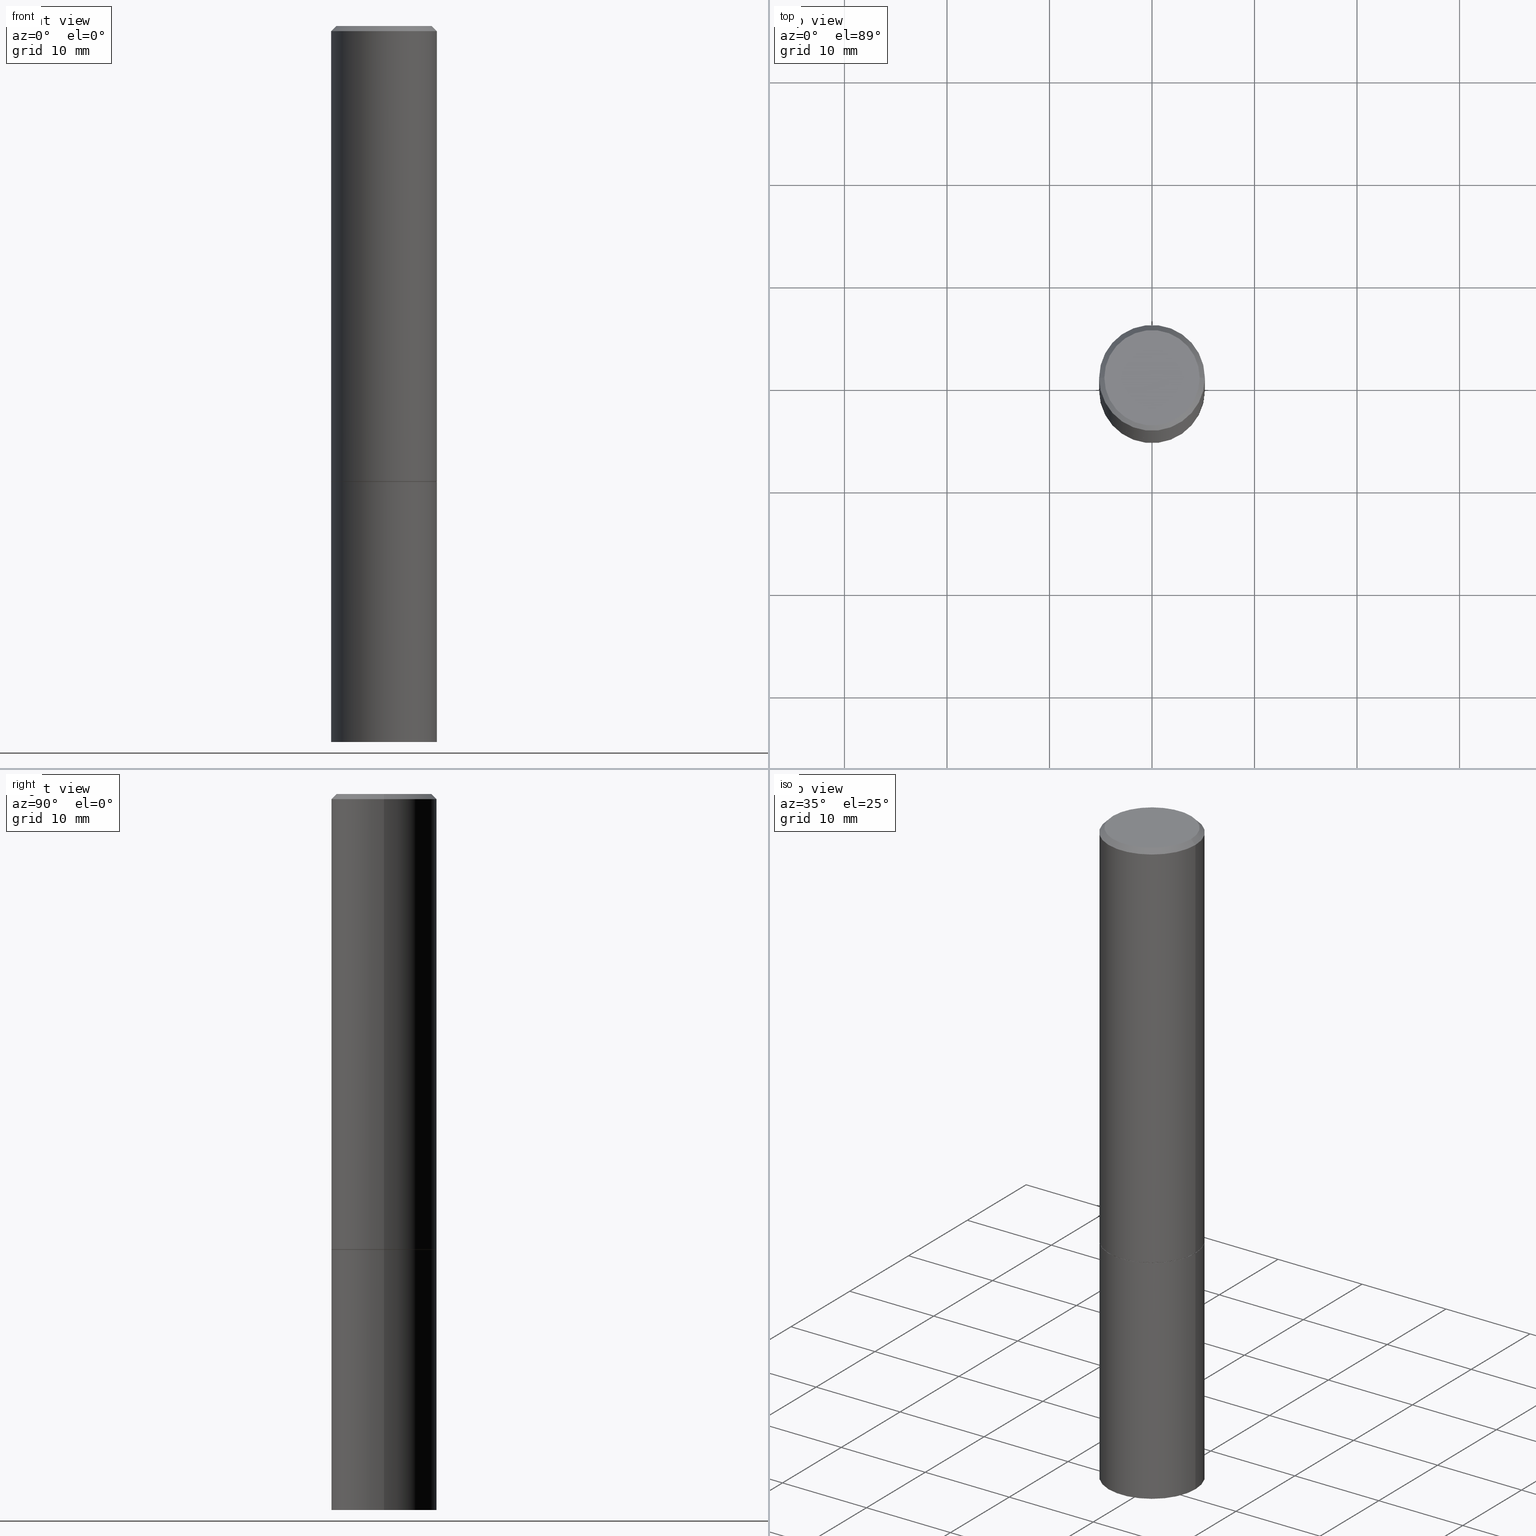
[diagram: canonical four-view strip — front | top / right | iso, engineering-drawing reading convention]
A machine part, canonical four-view strip (front | top / right | iso — engineering-drawing reading convention). The complete STEP part file that produces these views, byte-faithful:
ISO-10303-21;
HEADER;
FILE_DESCRIPTION (( 'STEP AP203' ),
    '1' );
FILE_NAME ('39051.STEP',
    '2023-03-21T20:47:35',
    ( '' ),
    ( '' ),
    'SwSTEP 2.0',
    'SolidWorks 2022',
    '' );
FILE_SCHEMA (( 'CONFIG_CONTROL_DESIGN' ));
ENDSEC;

DATA;
#1 = APPROVAL_DATE_TIME ( #211, #153 ) ;
#2 = CARTESIAN_POINT ( 'NONE',  ( 0.000000000000000000, 0.000000000000000000, 0.000000000000000000 ) ) ;
#3 = LINE ( 'NONE', #109, #341 ) ;
#4 = CONICAL_SURFACE ( 'NONE', #78, 0.2021000000000000019, 0.7853981633972775267 ) ;
#5 = EDGE_CURVE ( 'NONE', #62, #245, #182, .T. ) ;
#6 = PERSON_AND_ORGANIZATION_ROLE ( 'classification_officer' ) ;
#7 = CALENDAR_DATE ( 2023, 21, 3 ) ;
#8 = MANIFOLD_SOLID_BREP ( 'Body-Move/Copy2[1]', #48 ) ;
#9 = LOCAL_TIME ( 16, 47, 35.00000000000000000, #61 ) ;
#10 = CC_DESIGN_DATE_AND_TIME_ASSIGNMENT ( #330, #250, ( #258 ) ) ;
#11 = CLOSED_SHELL ( 'NONE', ( #117, #300, #194, #218, #127, #155, #228, #295 ) ) ;
#12 = DIRECTION ( 'NONE',  ( -2.445468806185136597E-29, 3.491481338843145583E-15, 1.000000000000000000 ) ) ;
#13 = CARTESIAN_POINT ( 'NONE',  ( 0.000000000000000000, 0.000000000000000000, 0.000000000000000000 ) ) ;
#14 = DIRECTION ( 'NONE',  ( -2.445468806185136597E-29, 3.491481338843145583E-15, 1.000000000000000000 ) ) ;
#15 = EDGE_CURVE ( 'NONE', #319, #146, #314, .T. ) ;
#16 = CARTESIAN_POINT ( 'NONE',  ( -0.2021000000000000019, -4.668787019656119386E-15, -1.750000000000000222 ) ) ;
#17 = ORIENTED_EDGE ( 'NONE', *, *, #5, .T. ) ;
#18 = ORIENTED_EDGE ( 'NONE', *, *, #138, .F. ) ;
#19 = CARTESIAN_POINT ( 'NONE',  ( 4.871854200182712814E-19, -9.564410284714797883E-15, -2.739355980027615711 ) ) ;
#20 = AXIS2_PLACEMENT_3D ( 'NONE', #68, #195, #173 ) ;
#21 = SECURITY_CLASSIFICATION ( '', '', #335 ) ;
#22 = CARTESIAN_POINT ( 'NONE',  ( 1.278580466284354179E-15, 0.1830999999999998462, -6.392902331421793574E-16 ) ) ;
#23 = VECTOR ( 'NONE', #175, 39.37007874015748143 ) ;
#24 = CARTESIAN_POINT ( 'NONE',  ( 0.2021000000000000019, -7.521349100135901010E-15, -1.750000000000000222 ) ) ;
#25 = EDGE_LOOP ( 'NONE', ( #73, #17 ) ) ;
#26 = CARTESIAN_POINT ( 'NONE',  ( 0.2031000000000000028, -1.418239719838080775E-15, 9.903515031641546145E-30 ) ) ;
#27 = LINE ( 'NONE', #24, #41 ) ;
#28 = APPROVAL_ROLE ( '' ) ;
#29 = AXIS2_PLACEMENT_3D ( 'NONE', #118, #190, #210 ) ;
#30 = FACE_OUTER_BOUND ( 'NONE', #336, .T. ) ;
#31 = EDGE_CURVE ( 'NONE', #266, #205, #92, .T. ) ;
#32 = COORDINATED_UNIVERSAL_TIME_OFFSET ( 5, 0, .BEHIND. ) ;
#33 = EDGE_LOOP ( 'NONE', ( #241, #384, #259 ) ) ;
#34 = PRODUCT_RELATED_PRODUCT_CATEGORY ( 'detail', '', ( #337 ) ) ;
#35 = PERSON_AND_ORGANIZATION ( #96, #253 ) ;
#36 = ADVANCED_FACE ( 'NONE', ( #356 ), #358, .F. ) ;
#37 = CARTESIAN_POINT ( 'NONE',  ( 4.279570410823989044E-29, -6.110092342975505460E-15, -1.750000000000000222 ) ) ;
#38 = AXIS2_PLACEMENT_3D ( 'NONE', #157, #124, #246 ) ;
#39 = APPROVAL_DATE_TIME ( #283, #244 ) ;
#40 = CARTESIAN_POINT ( 'NONE',  ( 4.890937612370284544E-31, -6.982962677686307633E-17, -0.02000000000000004552 ) ) ;
#41 = VECTOR ( 'NONE', #90, 39.37007874015748143 ) ;
#42 = DIRECTION ( 'NONE',  ( 1.000000000000000000, -6.982962677686264344E-15, 0.000000000000000000 ) ) ;
#43 = CC_DESIGN_PERSON_AND_ORGANIZATION_ASSIGNMENT ( #130, #6, ( #21 ) ) ;
#44 = DIRECTION ( 'NONE',  ( 2.445468806185136597E-29, -3.491481338843145583E-15, -1.000000000000000000 ) ) ;
#45 = EDGE_CURVE ( 'NONE', #319, #360, #185, .T. ) ;
#46 = DIRECTION ( 'NONE',  ( -2.438088387897960049E-29, 3.491481338843145188E-15, 1.000000000000000000 ) ) ;
#47 = APPROVAL_PERSON_ORGANIZATION ( #276, #153, #193 ) ;
#48 = CLOSED_SHELL ( 'NONE', ( #87, #85, #370, #95, #36 ) ) ;
#49 = EDGE_LOOP ( 'NONE', ( #386, #236, #243, #324 ) ) ;
#50 =( NAMED_UNIT ( * ) SI_UNIT ( $, .STERADIAN. ) SOLID_ANGLE_UNIT ( ) );
#51 = ORIENTED_EDGE ( 'NONE', *, *, #79, .T. ) ;
#52 = APPLICATION_CONTEXT ( 'configuration controlled 3d designs of mechanical parts and assemblies' ) ;
#53 = ORIENTED_EDGE ( 'NONE', *, *, #380, .T. ) ;
#54 = AXIS2_PLACEMENT_3D ( 'NONE', #176, #291, #261 ) ;
#55 = CIRCLE ( 'NONE', #298, 0.2031000000000000028 ) ;
#56 = LINE ( 'NONE', #183, #134 ) ;
#57 = CARTESIAN_POINT ( 'NONE',  ( -0.2031000000000000583, -1.645102947877997012E-15, -1.748999999999999888 ) ) ;
#58 = ORIENTED_EDGE ( 'NONE', *, *, #192, .T. ) ;
#59 = FACE_OUTER_BOUND ( 'NONE', #33, .T. ) ;
#60 = APPLICATION_CONTEXT ( 'configuration controlled 3d designs of mechanical parts and assemblies' ) ;
#61 = COORDINATED_UNIVERSAL_TIME_OFFSET ( 5, 0, .BEHIND. ) ;
#62 = VERTEX_POINT ( 'NONE', #354 ) ;
#63 = PERSON_AND_ORGANIZATION ( #96, #253 ) ;
#64 = DIRECTION ( 'NONE',  ( -0.9986295347545742773, 6.790662755453668466E-15, -0.05233595624293643084 ) ) ;
#65 = CALENDAR_DATE ( 2023, 21, 3 ) ;
#66 = APPROVAL_PERSON_ORGANIZATION ( #357, #244, #304 ) ;
#67 = CC_DESIGN_PERSON_AND_ORGANIZATION_ASSIGNMENT ( #368, #252, ( #150 ) ) ;
#68 = CARTESIAN_POINT ( 'NONE',  ( 4.890937612370284544E-31, -6.982962677686307633E-17, -0.02000000000000004552 ) ) ;
#69 = CARTESIAN_POINT ( 'NONE',  ( 0.2030999999999997530, -1.099494082516604752E-14, -2.750000000000000000 ) ) ;
#70 = AXIS2_PLACEMENT_3D ( 'NONE', #22, #238, #114 ) ;
#71 = AXIS2_PLACEMENT_3D ( 'NONE', #88, #388, #363 ) ;
#72 = DIRECTION ( 'NONE',  ( -1.000000000000000000, 6.982962677686266711E-15, 0.000000000000000000 ) ) ;
#73 = ORIENTED_EDGE ( 'NONE', *, *, #256, .T. ) ;
#74 = CARTESIAN_POINT ( 'NONE',  ( 0.2031000000000000028, -7.528332062813585446E-15, -1.750000000000000000 ) ) ;
#75 = ORIENTED_EDGE ( 'NONE', *, *, #380, .F. ) ;
#76 = DIRECTION ( 'NONE',  ( -1.000000000000000000, 6.982962677686266711E-15, 0.000000000000000000 ) ) ;
#77 = ORIENTED_EDGE ( 'NONE', *, *, #192, .F. ) ;
#78 = AXIS2_PLACEMENT_3D ( 'NONE', #199, #14, #376 ) ;
#79 = EDGE_CURVE ( 'NONE', #143, #146, #27, .T. ) ;
#80 = ORIENTED_EDGE ( 'NONE', *, *, #352, .T. ) ;
#81 = DIRECTION ( 'NONE',  ( 1.000000000000000000, -6.982962677686266711E-15, 4.876176775795935793E-29 ) ) ;
#82 = ORIENTED_EDGE ( 'NONE', *, *, #174, .T. ) ;
#83 = LENGTH_MEASURE_WITH_UNIT ( LENGTH_MEASURE( 0.02539999999999999897 ), #239 );
#84 = CYLINDRICAL_SURFACE ( 'NONE', #225, 0.2031000000000000028 ) ;
#85 = ADVANCED_FACE ( 'NONE', ( #59 ), #198, .F. ) ;
#86 = CARTESIAN_POINT ( 'NONE',  ( 0.000000000000000000, 0.000000000000000000, 0.000000000000000000 ) ) ;
#87 = ADVANCED_FACE ( 'NONE', ( #207 ), #84, .T. ) ;
#88 = CARTESIAN_POINT ( 'NONE',  ( 4.279570410823988484E-29, -6.110092342975504671E-15, -1.750000000000000000 ) ) ;
#89 = PERSON_AND_ORGANIZATION_ROLE ( 'design_owner' ) ;
#90 = DIRECTION ( 'NONE',  ( 0.7071067811864267805, -2.468850131080992517E-15, 0.7071067811866682540 ) ) ;
#91 = ORIENTED_EDGE ( 'NONE', *, *, #79, .F. ) ;
#92 = CIRCLE ( 'NONE', #320, 0.1830999999999998462 ) ;
#93 = CC_DESIGN_APPROVAL ( #244, ( #258 ) ) ;
#94 = DIRECTION ( 'NONE',  ( 1.000000000000000000, -6.982962677686266711E-15, 4.876176775795935793E-29 ) ) ;
#95 = ADVANCED_FACE ( 'NONE', ( #30 ), #163, .T. ) ;
#96 = PERSON ( 'UNSPECIFIED', 'UNSPECIFIED', 'UNSPECIFIED', ('UNSPECIFIED'), ('UNSPECIFIED'), ('UNSPECIFIED') ) ;
#97 = PERSON_AND_ORGANIZATION ( #96, #253 ) ;
#98 = LOCAL_TIME ( 16, 47, 35.00000000000000000, #168 ) ;
#99 = VECTOR ( 'NONE', #184, 39.37007874015748143 ) ;
#100 = CARTESIAN_POINT ( 'NONE',  ( -0.2030999999999998362, 1.348410093061216491E-15, -0.02000000000000004552 ) ) ;
#101 = DIRECTION ( 'NONE',  ( 1.000000000000000000, -6.982962677686266711E-15, 4.876176775795935793E-29 ) ) ;
#102 = EDGE_CURVE ( 'NONE', #331, #346, #56, .T. ) ;
#103 = DIRECTION ( 'NONE',  ( -0.7071067811865465735, 2.468850131082246805E-15, -0.7071067811865484609 ) ) ;
#104 = AXIS2_PLACEMENT_3D ( 'NONE', #269, #123, #116 ) ;
#105 = ORIENTED_EDGE ( 'NONE', *, *, #177, .T. ) ;
#106 = VECTOR ( 'NONE', #103, 39.37007874015748143 ) ;
#107 = LINE ( 'NONE', #191, #281 ) ;
#108 = ORIENTED_EDGE ( 'NONE', *, *, #138, .T. ) ;
#109 = CARTESIAN_POINT ( 'NONE',  ( 0.2030999999999998362, -1.463196770124260168E-15, -0.02000000000000004552 ) ) ;
#110 = VERTEX_POINT ( 'NONE', #16 ) ;
#111 = DIRECTION ( 'NONE',  ( 0.000000000000000000, 0.000000000000000000, 1.000000000000000000 ) ) ;
#112 = ORIENTED_EDGE ( 'NONE', *, *, #31, .T. ) ;
#113 = CIRCLE ( 'NONE', #219, 0.2030999999999998362 ) ;
#114 = DIRECTION ( 'NONE',  ( -1.000000000000000000, 6.982962677686265922E-15, -4.876176775795935793E-29 ) ) ;
#115 = ORIENTED_EDGE ( 'NONE', *, *, #352, .F. ) ;
#116 = DIRECTION ( 'NONE',  ( 1.000000000000000000, -6.982962677686266711E-15, 4.876176775795935793E-29 ) ) ;
#117 = ADVANCED_FACE ( 'NONE', ( #257 ), #4, .T. ) ;
#118 = CARTESIAN_POINT ( 'NONE',  ( 1.418239719838123571E-15, 0.2030999999999938965, -1.750000000000000666 ) ) ;
#119 = EDGE_CURVE ( 'NONE', #110, #143, #342, .T. ) ;
#120 = CARTESIAN_POINT ( 'NONE',  ( 1.029773090543019914E-27, -1.470243055147599021E-13, -42.10943472018509937 ) ) ;
#121 = ORIENTED_EDGE ( 'NONE', *, *, #366, .F. ) ;
#122 = LOCAL_TIME ( 16, 47, 35.00000000000000000, #217 ) ;
#123 = DIRECTION ( 'NONE',  ( -2.445468806185136597E-29, 3.491481338843145583E-15, 1.000000000000000000 ) ) ;
#124 = DIRECTION ( 'NONE',  ( -2.445468806185136597E-29, 3.491481338843145583E-15, 1.000000000000000000 ) ) ;
#125 = CC_DESIGN_PERSON_AND_ORGANIZATION_ASSIGNMENT ( #35, #332, ( #258 ) ) ;
#126 = SHAPE_DEFINITION_REPRESENTATION ( #220, #224 ) ;
#127 = ADVANCED_FACE ( 'NONE', ( #226 ), #316, .T. ) ;
#128 = EDGE_LOOP ( 'NONE', ( #108, #58, #377, #115 ) ) ;
#129 = UNCERTAINTY_MEASURE_WITH_UNIT (LENGTH_MEASURE( 1.000000000000000082E-05 ), #297, 'distance_accuracy_value', 'NONE');
#130 = PERSON_AND_ORGANIZATION ( #96, #253 ) ;
#131 = DIRECTION ( 'NONE',  ( -2.445468806185136597E-29, 3.491481338843145583E-15, 1.000000000000000000 ) ) ;
#132 = AXIS2_PLACEMENT_3D ( 'NONE', #13, #231, #101 ) ;
#133 = CALENDAR_DATE ( 2023, 21, 3 ) ;
#134 = VECTOR ( 'NONE', #64, 39.37007874015748143 ) ;
#135 = CARTESIAN_POINT ( 'NONE',  ( 0.2021000000000000019, -7.521349100135901010E-15, -1.750000000000000222 ) ) ;
#136 = CALENDAR_DATE ( 2023, 21, 3 ) ;
#137 = EDGE_CURVE ( 'NONE', #266, #159, #3, .T. ) ;
#138 = EDGE_CURVE ( 'NONE', #178, #346, #55, .T. ) ;
#139 = CARTESIAN_POINT ( 'NONE',  ( 4.279570410823989044E-29, -6.110092342975505460E-15, -1.750000000000000222 ) ) ;
#140 = CARTESIAN_POINT ( 'NONE',  ( -0.2021000000000000019, -4.674085474004342577E-15, -1.750000000000000222 ) ) ;
#141 = ORIENTED_EDGE ( 'NONE', *, *, #31, .F. ) ;
#142 = PLANE ( 'NONE',  #169 ) ;
#143 = VERTEX_POINT ( 'NONE', #135 ) ;
#144 = FACE_OUTER_BOUND ( 'NONE', #293, .T. ) ;
#145 = CC_DESIGN_PERSON_AND_ORGANIZATION_ASSIGNMENT ( #189, #89, ( #337 ) ) ;
#146 = VERTEX_POINT ( 'NONE', #340 ) ;
#147 = DIRECTION ( 'NONE',  ( -2.445468806185136597E-29, 3.491481338843145583E-15, 1.000000000000000000 ) ) ;
#148 = ORIENTED_EDGE ( 'NONE', *, *, #102, .T. ) ;
#149 = AXIS2_PLACEMENT_3D ( 'NONE', #372, #12, #42 ) ;
#150 = PRODUCT_DEFINITION_FORMATION_WITH_SPECIFIED_SOURCE ( 'ANY', '', #337, .NOT_KNOWN. ) ;
#151 = EDGE_LOOP ( 'NONE', ( #301, #349 ) ) ;
#152 = CONICAL_SURFACE ( 'NONE', #364, 751.2258538476739886, 1.518436449235074148 ) ;
#153 = APPROVAL ( #365, 'UNSPECIFIED' ) ;
#154 = CYLINDRICAL_SURFACE ( 'NONE', #188, 0.2030999999999999472 ) ;
#155 = ADVANCED_FACE ( 'NONE', ( #144 ), #254, .T. ) ;
#156 = CARTESIAN_POINT ( 'NONE',  ( 0.000000000000000000, 0.000000000000000000, 0.000000000000000000 ) ) ;
#157 = CARTESIAN_POINT ( 'NONE',  ( 4.277124942017804002E-29, -6.106600861636660875E-15, -1.748999999999999888 ) ) ;
#158 = LINE ( 'NONE', #26, #275 ) ;
#159 = VERTEX_POINT ( 'NONE', #251 ) ;
#160 = CC_DESIGN_SECURITY_CLASSIFICATION ( #21, ( #150 ) ) ;
#161 = EDGE_CURVE ( 'NONE', #360, #159, #296, .T. ) ;
#162 = AXIS2_PLACEMENT_3D ( 'NONE', #2, #131, #327 ) ;
#163 = CYLINDRICAL_SURFACE ( 'NONE', #162, 0.2031000000000000028 ) ;
#164 = CARTESIAN_POINT ( 'NONE',  ( 1.029773090543019914E-27, -1.470243055147599021E-13, -42.10943472018509937 ) ) ;
#165 = APPROVAL_DATE_TIME ( #279, #351 ) ;
#166 = CARTESIAN_POINT ( 'NONE',  ( 4.890937612370284544E-31, -6.982962677686307633E-17, -0.02000000000000004552 ) ) ;
#167 = APPROVAL_PERSON_ORGANIZATION ( #63, #351, #28 ) ;
#168 = COORDINATED_UNIVERSAL_TIME_OFFSET ( 5, 0, .BEHIND. ) ;
#169 = AXIS2_PLACEMENT_3D ( 'NONE', #260, #46, #229 ) ;
#170 = COORDINATED_UNIVERSAL_TIME_OFFSET ( 5, 0, .BEHIND. ) ;
#171 = EDGE_CURVE ( 'NONE', #346, #178, #306, .T. ) ;
#172 = CARTESIAN_POINT ( 'NONE',  ( 6.725039217009124520E-29, -9.601573681818649859E-15, -2.750000000000000000 ) ) ;
#173 = DIRECTION ( 'NONE',  ( -1.000000000000000000, 6.982962677686266711E-15, 0.000000000000000000 ) ) ;
#174 = EDGE_CURVE ( 'NONE', #146, #159, #107, .T. ) ;
#175 = DIRECTION ( 'NONE',  ( -0.7071067811864267805, 7.493145998869918709E-15, 0.7071067811866682540 ) ) ;
#176 = CARTESIAN_POINT ( 'NONE',  ( 4.279570410823988484E-29, -6.110092342975504671E-15, -1.750000000000000000 ) ) ;
#177 = EDGE_CURVE ( 'NONE', #205, #360, #371, .T. ) ;
#178 = VERTEX_POINT ( 'NONE', #69 ) ;
#179 = CARTESIAN_POINT ( 'NONE',  ( 4.279570410823989044E-29, -6.110092342975505460E-15, -1.750000000000000222 ) ) ;
#180 = AXIS2_PLACEMENT_3D ( 'NONE', #206, #328, #267 ) ;
#181 = EDGE_LOOP ( 'NONE', ( #141, #289, #232, #213 ) ) ;
#182 = CIRCLE ( 'NONE', #71, 0.2031000000000000028 ) ;
#183 = CARTESIAN_POINT ( 'NONE',  ( -4.871854198842910760E-19, -9.564410284714797883E-15, -2.739355980027615711 ) ) ;
#184 = DIRECTION ( 'NONE',  ( 0.9986295347545742773, -7.033825938271997912E-15, -0.05233595624293643084 ) ) ;
#185 = LINE ( 'NONE', #216, #214 ) ;
#186 = DATE_AND_TIME ( #136, #9 ) ;
#187 = CARTESIAN_POINT ( 'NONE',  ( 0.000000000000000000, 0.000000000000000000, 0.000000000000000000 ) ) ;
#188 = AXIS2_PLACEMENT_3D ( 'NONE', #86, #350, #81 ) ;
#189 = PERSON_AND_ORGANIZATION ( #96, #253 ) ;
#190 = DIRECTION ( 'NONE',  ( 2.438088387897960049E-29, -3.491481338843145188E-15, -1.000000000000000000 ) ) ;
#191 = CARTESIAN_POINT ( 'NONE',  ( 0.2030999999999999472, -1.418239719838080381E-15, 9.903515031641543342E-30 ) ) ;
#192 = EDGE_CURVE ( 'NONE', #346, #62, #222, .T. ) ;
#193 = APPROVAL_ROLE ( '' ) ;
#194 = ADVANCED_FACE ( 'NONE', ( #197 ), #196, .T. ) ;
#195 = DIRECTION ( 'NONE',  ( 2.445468806185136597E-29, -3.491481338843145583E-15, -1.000000000000000000 ) ) ;
#196 = CONICAL_SURFACE ( 'NONE', #20, 0.2030999999999998362, 0.7853981633974469467 ) ;
#197 = FACE_OUTER_BOUND ( 'NONE', #181, .T. ) ;
#198 = CONICAL_SURFACE ( 'NONE', #369, 751.2258538476739886, 1.518436449235074148 ) ;
#199 = CARTESIAN_POINT ( 'NONE',  ( 4.279570410823989044E-29, -6.110092342975505460E-15, -1.750000000000000222 ) ) ;
#200 = ORIENTED_EDGE ( 'NONE', *, *, #307, .F. ) ;
#201 = DIRECTION ( 'NONE',  ( -2.445468806185136597E-29, 3.491481338843145583E-15, 1.000000000000000000 ) ) ;
#202 = EDGE_LOOP ( 'NONE', ( #268, #230, #82, #249 ) ) ;
#203 =( NAMED_UNIT ( * ) PLANE_ANGLE_UNIT ( ) SI_UNIT ( $, .RADIAN. ) );
#204 = CARTESIAN_POINT ( 'NONE',  ( 4.890937612370284544E-31, -6.982962677686307633E-17, -0.02000000000000004552 ) ) ;
#205 = VERTEX_POINT ( 'NONE', #312 ) ;
#206 = CARTESIAN_POINT ( 'NONE',  ( 4.277124942017804002E-29, -6.106600861636660875E-15, -1.748999999999999888 ) ) ;
#207 = FACE_OUTER_BOUND ( 'NONE', #128, .T. ) ;
#208 = CIRCLE ( 'NONE', #284, 0.2021000000000000019 ) ;
#209 = DIRECTION ( 'NONE',  ( 1.000000000000000000, -6.982962677686266711E-15, 0.000000000000000000 ) ) ;
#210 = DIRECTION ( 'NONE',  ( -1.000000000000000000, 6.982962677686265922E-15, -4.876176775795935793E-29 ) ) ;
#211 = DATE_AND_TIME ( #65, #242 ) ;
#212 = EDGE_LOOP ( 'NONE', ( #121, #148, #18 ) ) ;
#213 = ORIENTED_EDGE ( 'NONE', *, *, #177, .F. ) ;
#214 = VECTOR ( 'NONE', #303, 39.37007874015748143 ) ;
#215 = APPROVAL_STATUS ( 'not_yet_approved' ) ;
#216 = CARTESIAN_POINT ( 'NONE',  ( -0.2030999999999999472, 1.443112296328763103E-15, -9.990357168307711400E-30 ) ) ;
#217 = COORDINATED_UNIVERSAL_TIME_OFFSET ( 5, 0, .BEHIND. ) ;
#218 = ADVANCED_FACE ( 'NONE', ( #287 ), #334, .T. ) ;
#219 = AXIS2_PLACEMENT_3D ( 'NONE', #204, #147, #209 ) ;
#220 = PRODUCT_DEFINITION_SHAPE ( 'NONE', 'NONE',  #258 ) ;
#221 = EDGE_CURVE ( 'NONE', #110, #319, #318, .T. ) ;
#222 = LINE ( 'NONE', #338, #362 ) ;
#223 = DIRECTION ( 'NONE',  ( -2.445468806185136877E-29, 3.491481338843145188E-15, 1.000000000000000000 ) ) ;
#224 = ADVANCED_BREP_SHAPE_REPRESENTATION ( '39051', ( #8, #273, #272 ), #290 ) ;
#225 = AXIS2_PLACEMENT_3D ( 'NONE', #156, #305, #278 ) ;
#226 = FACE_OUTER_BOUND ( 'NONE', #202, .T. ) ;
#227 = AXIS2_PLACEMENT_3D ( 'NONE', #139, #367, #317 ) ;
#228 = ADVANCED_FACE ( 'NONE', ( #288 ), #142, .F. ) ;
#229 = DIRECTION ( 'NONE',  ( 1.000000000000000000, -6.982962677686265922E-15, 4.876176775795935793E-29 ) ) ;
#230 = ORIENTED_EDGE ( 'NONE', *, *, #15, .T. ) ;
#231 = DIRECTION ( 'NONE',  ( -2.445468806185136597E-29, 3.491481338843145583E-15, 1.000000000000000000 ) ) ;
#232 = ORIENTED_EDGE ( 'NONE', *, *, #339, .T. ) ;
#233 = DIRECTION ( 'NONE',  ( 1.000000000000000000, 0.000000000000000000, 0.000000000000000000 ) ) ;
#234 = CC_DESIGN_APPROVAL ( #351, ( #21 ) ) ;
#235 = AXIS2_PLACEMENT_3D ( 'NONE', #166, #375, #280 ) ;
#236 = ORIENTED_EDGE ( 'NONE', *, *, #45, .T. ) ;
#237 = DESIGN_CONTEXT ( 'detailed design', #52, 'design' ) ;
#238 = DIRECTION ( 'NONE',  ( 2.438088387897960049E-29, -3.491481338843145188E-15, -1.000000000000000000 ) ) ;
#239 =( LENGTH_UNIT ( ) NAMED_UNIT ( * ) SI_UNIT ( $, .METRE. ) );
#240 = DIMENSIONAL_EXPONENTS ( 1.000000000000000000, 0.000000000000000000, 0.000000000000000000, 0.000000000000000000, 0.000000000000000000, 0.000000000000000000, 0.000000000000000000 ) ;
#241 = ORIENTED_EDGE ( 'NONE', *, *, #102, .F. ) ;
#242 = LOCAL_TIME ( 16, 47, 35.00000000000000000, #170 ) ;
#243 = ORIENTED_EDGE ( 'NONE', *, *, #339, .F. ) ;
#244 = APPROVAL ( #215, 'UNSPECIFIED' ) ;
#245 = VERTEX_POINT ( 'NONE', #74 ) ;
#246 = DIRECTION ( 'NONE',  ( 1.000000000000000000, -6.982962677686264344E-15, 0.000000000000000000 ) ) ;
#247 = APPLICATION_PROTOCOL_DEFINITION ( 'international standard', 'config_control_design', 1994, #52 ) ;
#248 = CIRCLE ( 'NONE', #54, 0.2031000000000000028 ) ;
#249 = ORIENTED_EDGE ( 'NONE', *, *, #161, .F. ) ;
#250 = DATE_TIME_ROLE ( 'creation_date' ) ;
#251 = CARTESIAN_POINT ( 'NONE',  ( 0.2030999999999998362, -1.463196770124260168E-15, -0.02000000000000004552 ) ) ;
#252 = PERSON_AND_ORGANIZATION_ROLE ( 'creator' ) ;
#253 = ORGANIZATION ( 'UNSPECIFIED', 'UNSPECIFIED', '' ) ;
#254 = CONICAL_SURFACE ( 'NONE', #374, 0.2021000000000000019, 0.7853981633972775267 ) ;
#255 = DIRECTION ( 'NONE',  ( 1.000000000000000000, -6.982962677686264344E-15, 0.000000000000000000 ) ) ;
#256 = EDGE_CURVE ( 'NONE', #245, #62, #248, .T. ) ;
#257 = FACE_OUTER_BOUND ( 'NONE', #373, .T. ) ;
#258 = PRODUCT_DEFINITION ( 'UNKNOWN', '', #150, #237 ) ;
#259 = ORIENTED_EDGE ( 'NONE', *, *, #171, .F. ) ;
#260 = CARTESIAN_POINT ( 'NONE',  ( 4.279570410823989044E-29, -6.110092342975505460E-15, -1.750000000000000222 ) ) ;
#261 = DIRECTION ( 'NONE',  ( 1.000000000000000000, -6.982962677686269866E-15, 0.000000000000000000 ) ) ;
#262 = ORIENTED_EDGE ( 'NONE', *, *, #137, .F. ) ;
#263 = APPLICATION_PROTOCOL_DEFINITION ( 'international standard', 'config_control_design', 1994, #60 ) ;
#264 = DIRECTION ( 'NONE',  ( -2.445468806185136597E-29, 3.491481338843145583E-15, 1.000000000000000000 ) ) ;
#265 = AXIS2_PLACEMENT_3D ( 'NONE', #40, #44, #72 ) ;
#266 = VERTEX_POINT ( 'NONE', #321 ) ;
#267 = DIRECTION ( 'NONE',  ( 1.000000000000000000, -6.982962677686264344E-15, 0.000000000000000000 ) ) ;
#268 = ORIENTED_EDGE ( 'NONE', *, *, #45, .F. ) ;
#269 = CARTESIAN_POINT ( 'NONE',  ( 0.000000000000000000, 0.000000000000000000, 0.000000000000000000 ) ) ;
#270 = ORIENTED_EDGE ( 'NONE', *, *, #171, .T. ) ;
#271 = LINE ( 'NONE', #19, #99 ) ;
#272 = AXIS2_PLACEMENT_3D ( 'NONE', #378, #111, #233 ) ;
#273 = MANIFOLD_SOLID_BREP ( 'Body-Move/Copy2[2]', #11 ) ;
#274 = ORIENTED_EDGE ( 'NONE', *, *, #119, .T. ) ;
#275 = VECTOR ( 'NONE', #323, 39.37007874015748143 ) ;
#276 = PERSON_AND_ORGANIZATION ( #96, #253 ) ;
#277 = ORIENTED_EDGE ( 'NONE', *, *, #15, .F. ) ;
#278 = DIRECTION ( 'NONE',  ( 1.000000000000000000, -6.982962677686266711E-15, 4.876176775795935793E-29 ) ) ;
#279 = DATE_AND_TIME ( #7, #98 ) ;
#280 = DIRECTION ( 'NONE',  ( 1.000000000000000000, -6.982962677686266711E-15, 0.000000000000000000 ) ) ;
#281 = VECTOR ( 'NONE', #223, 39.37007874015748143 ) ;
#282 = CALENDAR_DATE ( 2023, 21, 3 ) ;
#283 = DATE_AND_TIME ( #133, #325 ) ;
#284 = AXIS2_PLACEMENT_3D ( 'NONE', #179, #264, #355 ) ;
#285 = DIRECTION ( 'NONE',  ( -2.445468806185136597E-29, 3.491481338843145583E-15, 1.000000000000000000 ) ) ;
#286 = EDGE_CURVE ( 'NONE', #143, #110, #208, .T. ) ;
#287 = FACE_OUTER_BOUND ( 'NONE', #379, .T. ) ;
#288 = FACE_OUTER_BOUND ( 'NONE', #151, .T. ) ;
#289 = ORIENTED_EDGE ( 'NONE', *, *, #137, .T. ) ;
#290 =( GEOMETRIC_REPRESENTATION_CONTEXT ( 3 ) GLOBAL_UNCERTAINTY_ASSIGNED_CONTEXT ( ( #129 ) ) GLOBAL_UNIT_ASSIGNED_CONTEXT ( ( #297, #203, #50 ) ) REPRESENTATION_CONTEXT ( 'NONE', 'WORKASPACE' ) );
#291 = DIRECTION ( 'NONE',  ( -2.445468806185136597E-29, 3.491481338843145583E-15, 1.000000000000000000 ) ) ;
#292 = ORIENTED_EDGE ( 'NONE', *, *, #161, .T. ) ;
#293 = EDGE_LOOP ( 'NONE', ( #390, #274, #51, #277 ) ) ;
#294 = CARTESIAN_POINT ( 'NONE',  ( -0.2030999999999997530, -8.183333961980571451E-15, -2.750000000000000000 ) ) ;
#295 = ADVANCED_FACE ( 'NONE', ( #381 ), #326, .F. ) ;
#296 = CIRCLE ( 'NONE', #235, 0.2030999999999998362 ) ;
#297 =( CONVERSION_BASED_UNIT ( 'INCH', #83 ) LENGTH_UNIT ( ) NAMED_UNIT ( #240 ) );
#298 = AXIS2_PLACEMENT_3D ( 'NONE', #172, #285, #255 ) ;
#299 = DIRECTION ( 'NONE',  ( -2.445468806185136597E-29, 3.491481338843145583E-15, 1.000000000000000000 ) ) ;
#300 = ADVANCED_FACE ( 'NONE', ( #302 ), #154, .T. ) ;
#301 = ORIENTED_EDGE ( 'NONE', *, *, #286, .F. ) ;
#302 = FACE_OUTER_BOUND ( 'NONE', #49, .T. ) ;
#303 = DIRECTION ( 'NONE',  ( -2.445468806185136877E-29, 3.491481338843145188E-15, 1.000000000000000000 ) ) ;
#304 = APPROVAL_ROLE ( '' ) ;
#305 = DIRECTION ( 'NONE',  ( -2.445468806185136597E-29, 3.491481338843145583E-15, 1.000000000000000000 ) ) ;
#306 = CIRCLE ( 'NONE', #149, 0.2031000000000000028 ) ;
#307 = EDGE_CURVE ( 'NONE', #146, #319, #348, .T. ) ;
#308 = ORIENTED_EDGE ( 'NONE', *, *, #286, .T. ) ;
#309 = DIRECTION ( 'NONE',  ( 0.7071067811865465735, -7.319954787623252890E-15, -0.7071067811865484609 ) ) ;
#310 = DATE_TIME_ROLE ( 'classification_date' ) ;
#311 = CC_DESIGN_APPROVAL ( #153, ( #150 ) ) ;
#312 = CARTESIAN_POINT ( 'NONE',  ( -0.1830999999999998462, 1.313495279672785236E-15, -9.063697641761070783E-30 ) ) ;
#313 = CC_DESIGN_PERSON_AND_ORGANIZATION_ASSIGNMENT ( #97, #361, ( #150 ) ) ;
#314 = CIRCLE ( 'NONE', #38, 0.2031000000000000028 ) ;
#315 = CIRCLE ( 'NONE', #104, 0.1830999999999998462 ) ;
#316 = CYLINDRICAL_SURFACE ( 'NONE', #132, 0.2030999999999999472 ) ;
#317 = DIRECTION ( 'NONE',  ( 1.000000000000000000, -6.982962677686269077E-15, 0.000000000000000000 ) ) ;
#318 = LINE ( 'NONE', #140, #23 ) ;
#319 = VERTEX_POINT ( 'NONE', #57 ) ;
#320 = AXIS2_PLACEMENT_3D ( 'NONE', #187, #299, #94 ) ;
#321 = CARTESIAN_POINT ( 'NONE',  ( 0.1830999999999998462, -1.359676976758113188E-15, 9.224940175330600101E-30 ) ) ;
#322 = EDGE_LOOP ( 'NONE', ( #53, #112 ) ) ;
#323 = DIRECTION ( 'NONE',  ( -2.445468806185136877E-29, 3.491481338843145188E-15, 1.000000000000000000 ) ) ;
#324 = ORIENTED_EDGE ( 'NONE', *, *, #174, .F. ) ;
#325 = LOCAL_TIME ( 16, 47, 35.00000000000000000, #32 ) ;
#326 = PLANE ( 'NONE',  #70 ) ;
#327 = DIRECTION ( 'NONE',  ( 1.000000000000000000, -6.982962677686266711E-15, 4.876176775795935793E-29 ) ) ;
#328 = DIRECTION ( 'NONE',  ( -2.445468806185136597E-29, 3.491481338843145583E-15, 1.000000000000000000 ) ) ;
#329 = DIRECTION ( 'NONE',  ( 2.445468806185136597E-29, -3.491481338843145583E-15, -1.000000000000000000 ) ) ;
#330 = DATE_AND_TIME ( #282, #122 ) ;
#331 = VERTEX_POINT ( 'NONE', #385 ) ;
#332 = PERSON_AND_ORGANIZATION_ROLE ( 'creator' ) ;
#333 = DIRECTION ( 'NONE',  ( -1.000000000000000000, 6.982962677686266711E-15, 0.000000000000000000 ) ) ;
#334 = CONICAL_SURFACE ( 'NONE', #265, 0.2030999999999998362, 0.7853981633974469467 ) ;
#335 = SECURITY_CLASSIFICATION_LEVEL ( 'unclassified' ) ;
#336 = EDGE_LOOP ( 'NONE', ( #77, #270, #80, #345 ) ) ;
#337 = PRODUCT ( '39051', '39051', '', ( #347 ) ) ;
#338 = CARTESIAN_POINT ( 'NONE',  ( -0.2031000000000000028, 1.443112296328763497E-15, -9.990357168307714203E-30 ) ) ;
#339 = EDGE_CURVE ( 'NONE', #159, #360, #113, .T. ) ;
#340 = CARTESIAN_POINT ( 'NONE',  ( 0.2031000000000000028, -7.524840581474740861E-15, -1.748999999999999888 ) ) ;
#341 = VECTOR ( 'NONE', #309, 39.37007874015748143 ) ;
#342 = CIRCLE ( 'NONE', #227, 0.2021000000000000019 ) ;
#343 = DIRECTION ( 'NONE',  ( -2.445468806185136877E-29, 3.491481338843145188E-15, 1.000000000000000000 ) ) ;
#344 = DIRECTION ( 'NONE',  ( 1.000000000000000000, -6.982962677686269077E-15, 0.000000000000000000 ) ) ;
#345 = ORIENTED_EDGE ( 'NONE', *, *, #5, .F. ) ;
#346 = VERTEX_POINT ( 'NONE', #294 ) ;
#347 = MECHANICAL_CONTEXT ( 'NONE', #60, 'mechanical' ) ;
#348 = CIRCLE ( 'NONE', #180, 0.2031000000000000028 ) ;
#349 = ORIENTED_EDGE ( 'NONE', *, *, #119, .F. ) ;
#350 = DIRECTION ( 'NONE',  ( -2.445468806185136597E-29, 3.491481338843145583E-15, 1.000000000000000000 ) ) ;
#351 = APPROVAL ( #359, 'UNSPECIFIED' ) ;
#352 = EDGE_CURVE ( 'NONE', #178, #245, #158, .T. ) ;
#353 = DIRECTION ( 'NONE',  ( 2.445468806185136597E-29, -3.491481338843145583E-15, -1.000000000000000000 ) ) ;
#354 = CARTESIAN_POINT ( 'NONE',  ( -0.2031000000000000028, -6.412720716068313768E-15, -1.750000000000000000 ) ) ;
#355 = DIRECTION ( 'NONE',  ( 1.000000000000000000, -6.982962677686269077E-15, 0.000000000000000000 ) ) ;
#356 = FACE_OUTER_BOUND ( 'NONE', #25, .T. ) ;
#357 = PERSON_AND_ORGANIZATION ( #96, #253 ) ;
#358 = PLANE ( 'NONE',  #29 ) ;
#359 = APPROVAL_STATUS ( 'not_yet_approved' ) ;
#360 = VERTEX_POINT ( 'NONE', #383 ) ;
#361 = PERSON_AND_ORGANIZATION_ROLE ( 'design_supplier' ) ;
#362 = VECTOR ( 'NONE', #343, 39.37007874015748143 ) ;
#363 = DIRECTION ( 'NONE',  ( 1.000000000000000000, -6.982962677686269866E-15, 0.000000000000000000 ) ) ;
#364 = AXIS2_PLACEMENT_3D ( 'NONE', #120, #353, #76 ) ;
#365 = APPROVAL_STATUS ( 'not_yet_approved' ) ;
#366 = EDGE_CURVE ( 'NONE', #331, #178, #271, .T. ) ;
#367 = DIRECTION ( 'NONE',  ( -2.445468806185136597E-29, 3.491481338843145583E-15, 1.000000000000000000 ) ) ;
#368 = PERSON_AND_ORGANIZATION ( #96, #253 ) ;
#369 = AXIS2_PLACEMENT_3D ( 'NONE', #164, #329, #333 ) ;
#370 = ADVANCED_FACE ( 'NONE', ( #387 ), #152, .F. ) ;
#371 = LINE ( 'NONE', #100, #106 ) ;
#372 = CARTESIAN_POINT ( 'NONE',  ( 6.725039217009124520E-29, -9.601573681818649859E-15, -2.750000000000000000 ) ) ;
#373 = EDGE_LOOP ( 'NONE', ( #308, #382, #200, #91 ) ) ;
#374 = AXIS2_PLACEMENT_3D ( 'NONE', #37, #201, #344 ) ;
#375 = DIRECTION ( 'NONE',  ( -2.445468806185136597E-29, 3.491481338843145583E-15, 1.000000000000000000 ) ) ;
#376 = DIRECTION ( 'NONE',  ( 1.000000000000000000, -6.982962677686269077E-15, 0.000000000000000000 ) ) ;
#377 = ORIENTED_EDGE ( 'NONE', *, *, #256, .F. ) ;
#378 = CARTESIAN_POINT ( 'NONE',  ( 0.000000000000000000, 0.000000000000000000, 0.000000000000000000 ) ) ;
#379 = EDGE_LOOP ( 'NONE', ( #262, #75, #105, #292 ) ) ;
#380 = EDGE_CURVE ( 'NONE', #205, #266, #315, .T. ) ;
#381 = FACE_OUTER_BOUND ( 'NONE', #322, .T. ) ;
#382 = ORIENTED_EDGE ( 'NONE', *, *, #221, .T. ) ;
#383 = CARTESIAN_POINT ( 'NONE',  ( -0.2030999999999998362, 1.348410093061216491E-15, -0.02000000000000004552 ) ) ;
#384 = ORIENTED_EDGE ( 'NONE', *, *, #366, .T. ) ;
#385 = CARTESIAN_POINT ( 'NONE',  ( 6.698669398433785065E-29, -9.564897470134749414E-15, -2.739355980027615711 ) ) ;
#386 = ORIENTED_EDGE ( 'NONE', *, *, #307, .T. ) ;
#387 = FACE_OUTER_BOUND ( 'NONE', #212, .T. ) ;
#388 = DIRECTION ( 'NONE',  ( -2.445468806185136597E-29, 3.491481338843145583E-15, 1.000000000000000000 ) ) ;
#389 = CC_DESIGN_DATE_AND_TIME_ASSIGNMENT ( #186, #310, ( #21 ) ) ;
#390 = ORIENTED_EDGE ( 'NONE', *, *, #221, .F. ) ;
ENDSEC;
END-ISO-10303-21;
